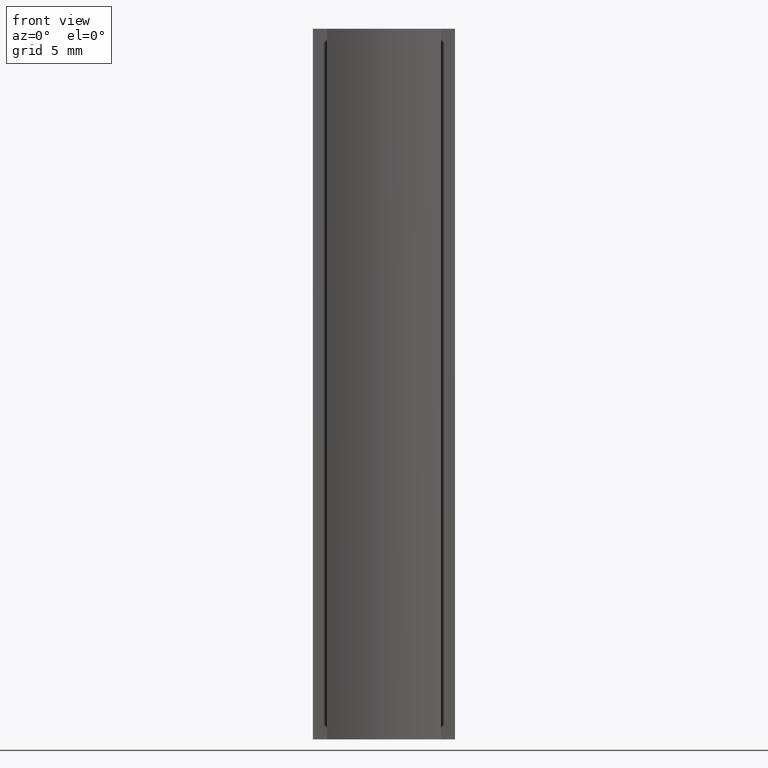
[diagram: clean part render]
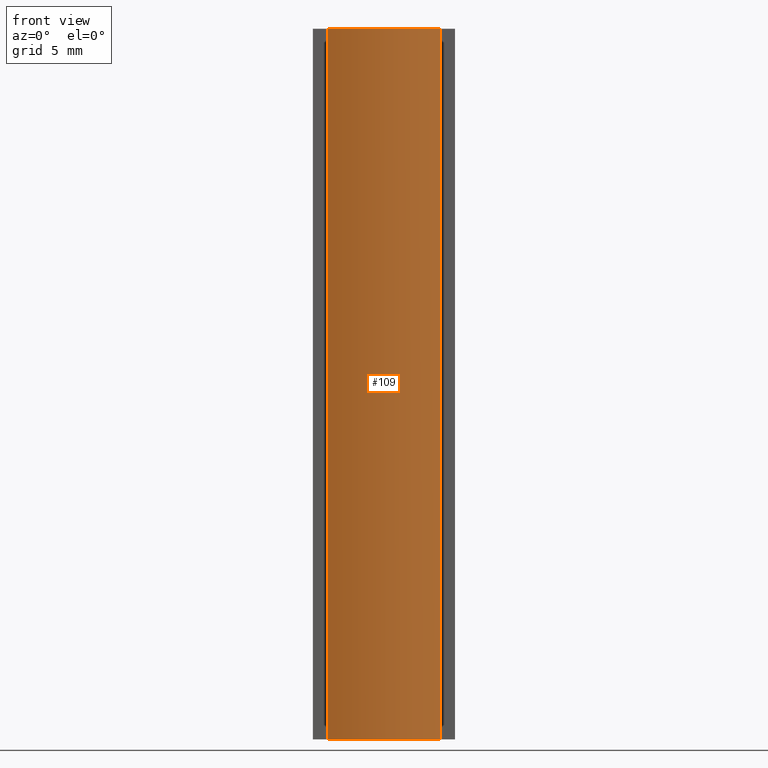
[diagram: same view with one face highlighted and labeled with its STEP entity id]
A machine part, front view. The second image highlights one B-rep face of the part: STEP entity #109.
In plain terms, the highlighted cylindrical surface (partial cylindrical patch) has radius 10 mm, axis along (-0, -0, 1).
Its self-contained STEP definition (entity closure, byte-faithful):
#22 = EDGE_CURVE ( 'NONE', #394, #390, #531, .T. ) ;
#24 = EDGE_CURVE ( 'NONE', #395, #394, #282, .T. ) ;
#30 = EDGE_CURVE ( 'NONE', #395, #389, #210, .T. ) ;
#73 = CIRCLE ( 'NONE', #486, 10.00000000000000000 ) ;
#109 = ADVANCED_FACE ( 'NONE', ( #409 ), #410, .T. ) ;
#165 = CARTESIAN_POINT ( 'NONE',  ( 4.000000000000000000, 10.00000000000000000, 50.00000000000000000 ) ) ;
#166 = DIRECTION ( 'NONE',  ( -0.0000000000000000000, 0.0000000000000000000, 1.000000000000000000 ) ) ;
#167 = DIRECTION ( 'NONE',  ( -1.000000000000000000, 0.0000000000000000000, 0.0000000000000000000 ) ) ;
#210 = LINE ( 'NONE', #276, #211 ) ;
#211 = VECTOR ( 'NONE', #277, 1000.000000000000000 ) ;
#276 = CARTESIAN_POINT ( 'NONE',  ( 0.0000000000000000000, 0.8348486100883192300, 0.0000000000000000000 ) ) ;
#277 = DIRECTION ( 'NONE',  ( -0.0000000000000000000, -0.0000000000000000000, 1.000000000000000000 ) ) ;
#282 = CIRCLE ( 'NONE', #480, 10.00000000000000000 ) ;
#293 = DIRECTION ( 'NONE',  ( -0.0000000000000000000, 0.0000000000000000000, 1.000000000000000000 ) ) ;
#294 = DIRECTION ( 'NONE',  ( -1.000000000000000000, 0.0000000000000000000, 0.0000000000000000000 ) ) ;
#367 = ORIENTED_EDGE ( 'NONE', *, *, #511, .F. ) ;
#368 = ORIENTED_EDGE ( 'NONE', *, *, #30, .F. ) ;
#369 = ORIENTED_EDGE ( 'NONE', *, *, #24, .T. ) ;
#370 = ORIENTED_EDGE ( 'NONE', *, *, #22, .T. ) ;
#378 = EDGE_LOOP ( 'NONE', ( #367, #368, #369, #370 ) ) ;
#389 = VERTEX_POINT ( 'NONE', #452 ) ;
#390 = VERTEX_POINT ( 'NONE', #453 ) ;
#394 = VERTEX_POINT ( 'NONE', #457 ) ;
#395 = VERTEX_POINT ( 'NONE', #458 ) ;
#407 = CARTESIAN_POINT ( 'NONE',  ( 4.000000000000000000, 10.00000000000000000, 0.0000000000000000000 ) ) ;
#409 = FACE_OUTER_BOUND ( 'NONE', #378, .T. ) ;
#410 = CYLINDRICAL_SURFACE ( 'NONE', #491, 10.00000000000000000 ) ;
#417 = DIRECTION ( 'NONE',  ( -0.0000000000000000000, -0.0000000000000000000, 1.000000000000000000 ) ) ;
#418 = DIRECTION ( 'NONE',  ( 1.000000000000000000, 0.0000000000000000000, 0.0000000000000000000 ) ) ;
#452 = CARTESIAN_POINT ( 'NONE',  ( 0.0000000000000000000, 0.8348486100883192300, 50.00000000000000000 ) ) ;
#453 = CARTESIAN_POINT ( 'NONE',  ( 8.000000000000000000, 0.8348486100883192300, 50.00000000000000000 ) ) ;
#457 = CARTESIAN_POINT ( 'NONE',  ( 8.000000000000000000, 0.8348486100883192300, 0.0000000000000000000 ) ) ;
#458 = CARTESIAN_POINT ( 'NONE',  ( 0.0000000000000000000, 0.8348486100883192300, 0.0000000000000000000 ) ) ;
#480 = AXIS2_PLACEMENT_3D ( 'NONE', #542, #293, #294 ) ;
#486 = AXIS2_PLACEMENT_3D ( 'NONE', #165, #166, #167 ) ;
#491 = AXIS2_PLACEMENT_3D ( 'NONE', #407, #417, #418 ) ;
#511 = EDGE_CURVE ( 'NONE', #389, #390, #73, .T. ) ;
#531 = LINE ( 'NONE', #538, #533 ) ;
#533 = VECTOR ( 'NONE', #539, 1000.000000000000000 ) ;
#538 = CARTESIAN_POINT ( 'NONE',  ( 8.000000000000000000, 0.8348486100883192300, 0.0000000000000000000 ) ) ;
#539 = DIRECTION ( 'NONE',  ( -0.0000000000000000000, -0.0000000000000000000, 1.000000000000000000 ) ) ;
#542 = CARTESIAN_POINT ( 'NONE',  ( 4.000000000000000000, 10.00000000000000000, 0.0000000000000000000 ) ) ;